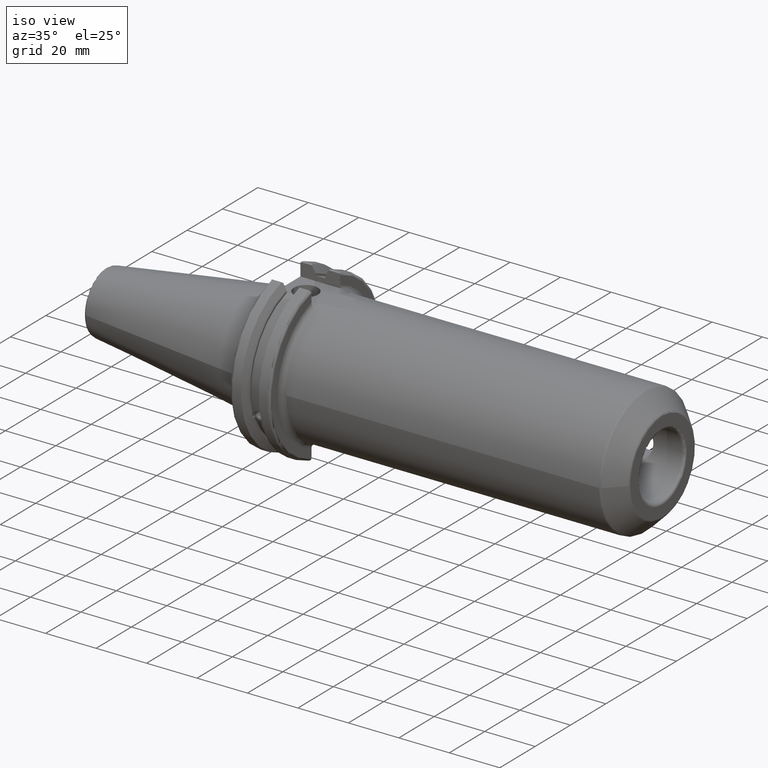
[diagram: clean part render]
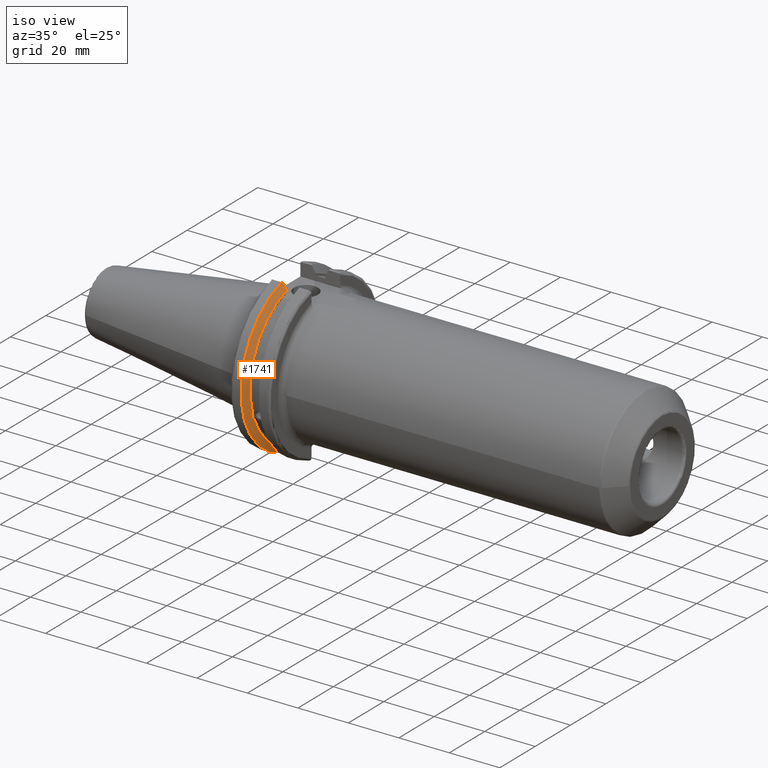
[diagram: same view with one face highlighted and labeled with its STEP entity id]
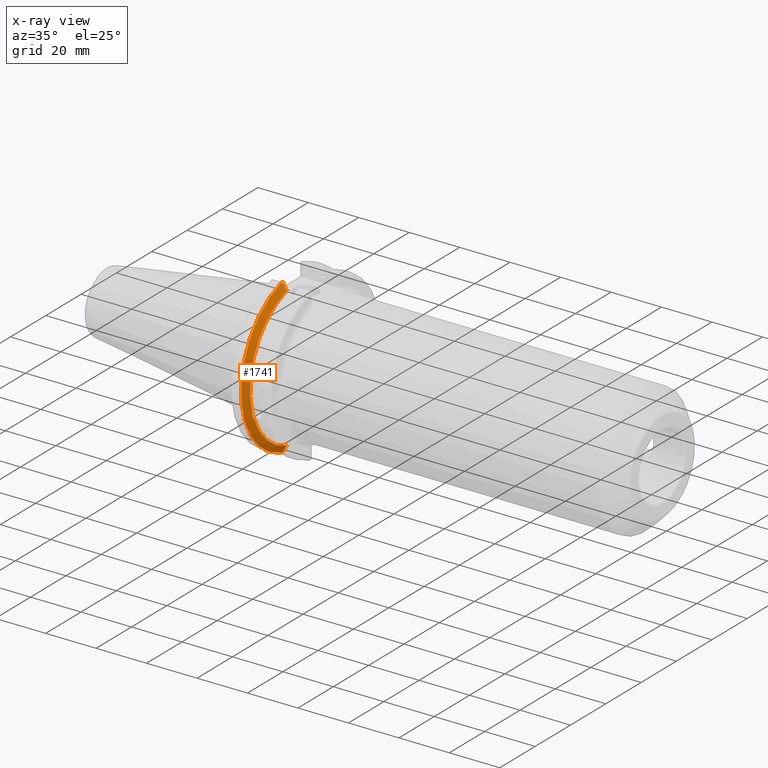
[diagram: x-ray of the same camera — body ghosted, the highlighted face saturated]
A machine part, iso view. The second image highlights one B-rep face of the part: STEP entity #1741.
The next image is the same camera in x-ray: the body ghosted, the highlighted face saturated — about 0% of this face is hidden behind the body in this view.
In plain terms, the highlighted conical surface has half-angle 60 deg.
Its self-contained STEP definition (entity closure, byte-faithful):
#27=(
BOUNDED_CURVE()
B_SPLINE_CURVE(2,(#2738,#2739,#2740),.UNSPECIFIED.,.F.,.F.)
B_SPLINE_CURVE_WITH_KNOTS((3,3),(0.0550586467392022,0.33160778953585),
 .UNSPECIFIED.)
CURVE()
GEOMETRIC_REPRESENTATION_ITEM()
RATIONAL_B_SPLINE_CURVE((1.00031614445148,1.00095203904325,1.))
REPRESENTATION_ITEM('')
);
#37=(
BOUNDED_CURVE()
B_SPLINE_CURVE(2,(#3354,#3355,#3356),.UNSPECIFIED.,.F.,.F.)
B_SPLINE_CURVE_WITH_KNOTS((3,3),(0.,0.276549142796136),.UNSPECIFIED.)
CURVE()
GEOMETRIC_REPRESENTATION_ITEM()
RATIONAL_B_SPLINE_CURVE((1.,1.00095203903316,1.00031614444813))
REPRESENTATION_ITEM('')
);
#38=(
BOUNDED_CURVE()
B_SPLINE_CURVE(2,(#3386,#3387,#3388),.UNSPECIFIED.,.F.,.F.)
B_SPLINE_CURVE_WITH_KNOTS((3,3),(0.,0.0639048713676282),.UNSPECIFIED.)
CURVE()
GEOMETRIC_REPRESENTATION_ITEM()
RATIONAL_B_SPLINE_CURVE((1.,1.00028444218284,1.00047644010574))
REPRESENTATION_ITEM('')
);
#39=(
BOUNDED_CURVE()
B_SPLINE_CURVE(2,(#3394,#3395,#3396),.UNSPECIFIED.,.F.,.F.)
B_SPLINE_CURVE_WITH_KNOTS((3,3),(0.329353533631205,0.393258405001025),
 .UNSPECIFIED.)
CURVE()
GEOMETRIC_REPRESENTATION_ITEM()
RATIONAL_B_SPLINE_CURVE((1.00047644010572,1.00028444218283,1.))
REPRESENTATION_ITEM('')
);
#239=FACE_OUTER_BOUND('',#351,.T.);
#351=EDGE_LOOP('',(#1625,#1626,#1627,#1628,#1629,#1630,#1631,#1632));
#395=CIRCLE('',#1856,28.9593772964944);
#415=CIRCLE('',#1908,31.75);
#433=CIRCLE('',#1956,28.9593772964944);
#651=B_SPLINE_CURVE_WITH_KNOTS('',3,(#2980,#2981,#2982,#2983,#2984,#2985,
#2986,#2987,#2988,#2989,#2990,#2991,#2992,#2993),.UNSPECIFIED.,.F.,.F.,
(4,2,2,2,2,2,4),(0.451995700189024,0.464547828547662,0.504528771685167,
0.544509714822672,0.584490657960178,0.624471601097683,0.63702372945632),
 .UNSPECIFIED.);
#723=VERTEX_POINT('',#2735);
#724=VERTEX_POINT('',#2737);
#765=VERTEX_POINT('',#2977);
#766=VERTEX_POINT('',#2979);
#825=VERTEX_POINT('',#3351);
#826=VERTEX_POINT('',#3353);
#831=VERTEX_POINT('',#3384);
#832=VERTEX_POINT('',#3390);
#907=EDGE_CURVE('',#724,#723,#27,.T.);
#968=EDGE_CURVE('',#766,#765,#651,.T.);
#988=EDGE_CURVE('',#766,#723,#395,.T.);
#1059=EDGE_CURVE('',#826,#825,#37,.T.);
#1068=EDGE_CURVE('',#831,#825,#38,.T.);
#1070=EDGE_CURVE('',#831,#832,#415,.T.);
#1071=EDGE_CURVE('',#724,#832,#39,.T.);
#1112=EDGE_CURVE('',#826,#765,#433,.T.);
#1625=ORIENTED_EDGE('',*,*,#968,.T.);
#1626=ORIENTED_EDGE('',*,*,#1112,.F.);
#1627=ORIENTED_EDGE('',*,*,#1059,.T.);
#1628=ORIENTED_EDGE('',*,*,#1068,.F.);
#1629=ORIENTED_EDGE('',*,*,#1070,.T.);
#1630=ORIENTED_EDGE('',*,*,#1071,.F.);
#1631=ORIENTED_EDGE('',*,*,#907,.T.);
#1632=ORIENTED_EDGE('',*,*,#988,.F.);
#1649=CONICAL_SURFACE('',#1955,30.3546886482472,1.0471975511966);
#1741=ADVANCED_FACE('',(#239),#1649,.T.);
#1856=AXIS2_PLACEMENT_3D('',#3060,#2188,#2189);
#1908=AXIS2_PLACEMENT_3D('',#3392,#2320,#2321);
#1955=AXIS2_PLACEMENT_3D('',#3506,#2432,#2433);
#1956=AXIS2_PLACEMENT_3D('',#3507,#2434,#2435);
#2188=DIRECTION('center_axis',(1.,0.,0.));
#2189=DIRECTION('ref_axis',(0.,0.,-1.));
#2320=DIRECTION('center_axis',(1.,0.,0.));
#2321=DIRECTION('ref_axis',(0.,0.,-1.));
#2432=DIRECTION('center_axis',(-1.,0.,0.));
#2433=DIRECTION('ref_axis',(0.,-1.,-1.22464679914735E-16));
#2434=DIRECTION('center_axis',(1.,0.,0.));
#2435=DIRECTION('ref_axis',(0.,0.,-1.));
#2735=CARTESIAN_POINT('',(9.2191,-8.19,-27.7771386827498));
#2737=CARTESIAN_POINT('',(7.88668530351256,-8.19,-30.1755016258903));
#2738=CARTESIAN_POINT('Ctrl Pts',(7.88668530351256,-8.19,-30.1755016258903));
#2739=CARTESIAN_POINT('Ctrl Pts',(8.5804635615235,-8.19,-28.9303689539712));
#2740=CARTESIAN_POINT('Ctrl Pts',(9.2191,-8.19,-27.7771386827498));
#2977=CARTESIAN_POINT('',(9.2191,-27.4956274489925,-9.09043478536245));
#2979=CARTESIAN_POINT('',(9.2191,-26.9060914640648,-10.7101715919071));
#2980=CARTESIAN_POINT('Ctrl Pts',(9.2191,-26.9060914640648,-10.7101715919071));
#2981=CARTESIAN_POINT('Ctrl Pts',(9.20497959280038,-26.9406927482839,-10.6893765730703));
#2982=CARTESIAN_POINT('Ctrl Pts',(9.19150701821434,-26.9744191989197,-10.6676007180673));
#2983=CARTESIAN_POINT('Ctrl Pts',(9.13811855884095,-27.1113422433189,-10.5723885976054));
#2984=CARTESIAN_POINT('Ctrl Pts',(9.09998029158246,-27.2180531796526,-10.4801333026531));
#2985=CARTESIAN_POINT('Ctrl Pts',(9.04778935539424,-27.3968610665578,-10.2639559818059));
#2986=CARTESIAN_POINT('Ctrl Pts',(9.0341,-27.4684373304961,-10.139516340139));
#2987=CARTESIAN_POINT('Ctrl Pts',(9.0341,-27.559599249844,-9.8890510252165));
#2988=CARTESIAN_POINT('Ctrl Pts',(9.04778935539424,-27.5847569104122,-9.74771639360671));
#2989=CARTESIAN_POINT('Ctrl Pts',(9.09998029158246,-27.5867382255984,-9.46717946402648));
#2990=CARTESIAN_POINT('Ctrl Pts',(9.13811855884095,-27.5642934663232,-9.32791534028656));
#2991=CARTESIAN_POINT('Ctrl Pts',(9.19150701821434,-27.5206055003512,-9.16696618806877));
#2992=CARTESIAN_POINT('Ctrl Pts',(9.20497959280038,-27.5087667900418,-9.12860597076218));
#2993=CARTESIAN_POINT('Ctrl Pts',(9.2191,-27.4956274489925,-9.09043478536245));
#3060=CARTESIAN_POINT('Origin',(9.2191,0.,0.));
#3351=CARTESIAN_POINT('',(7.88668530351257,-8.19,30.1755016258903));
#3353=CARTESIAN_POINT('',(9.2191,-8.19,27.7771386827498));
#3354=CARTESIAN_POINT('Ctrl Pts',(9.2191,-8.19,27.7771386827498));
#3355=CARTESIAN_POINT('Ctrl Pts',(8.58046356152393,-8.19,28.9303689539705));
#3356=CARTESIAN_POINT('Ctrl Pts',(7.88668530351257,-8.19,30.1755016258903));
#3384=CARTESIAN_POINT('',(7.60793323092436,-8.67204822802685,30.5427254764662));
#3386=CARTESIAN_POINT('Ctrl Pts',(7.60793323092436,-8.67204822802686,30.5427254764662));
#3387=CARTESIAN_POINT('Ctrl Pts',(7.74899148121626,-8.42917748262648,30.357706789263));
#3388=CARTESIAN_POINT('Ctrl Pts',(7.88668530351257,-8.19,30.1755016258903));
#3390=CARTESIAN_POINT('',(7.60793323092436,-8.67204822802685,-30.5427254764662));
#3392=CARTESIAN_POINT('Origin',(7.60793323092436,0.,0.));
#3394=CARTESIAN_POINT('Ctrl Pts',(7.88668530351256,-8.19,-30.1755016258903));
#3395=CARTESIAN_POINT('Ctrl Pts',(7.74899148121159,-8.42917748263467,-30.3577067892692));
#3396=CARTESIAN_POINT('Ctrl Pts',(7.60793323092435,-8.67204822802687,-30.5427254764662));
#3506=CARTESIAN_POINT('Origin',(8.41351661546218,0.,0.));
#3507=CARTESIAN_POINT('Origin',(9.2191,0.,0.));